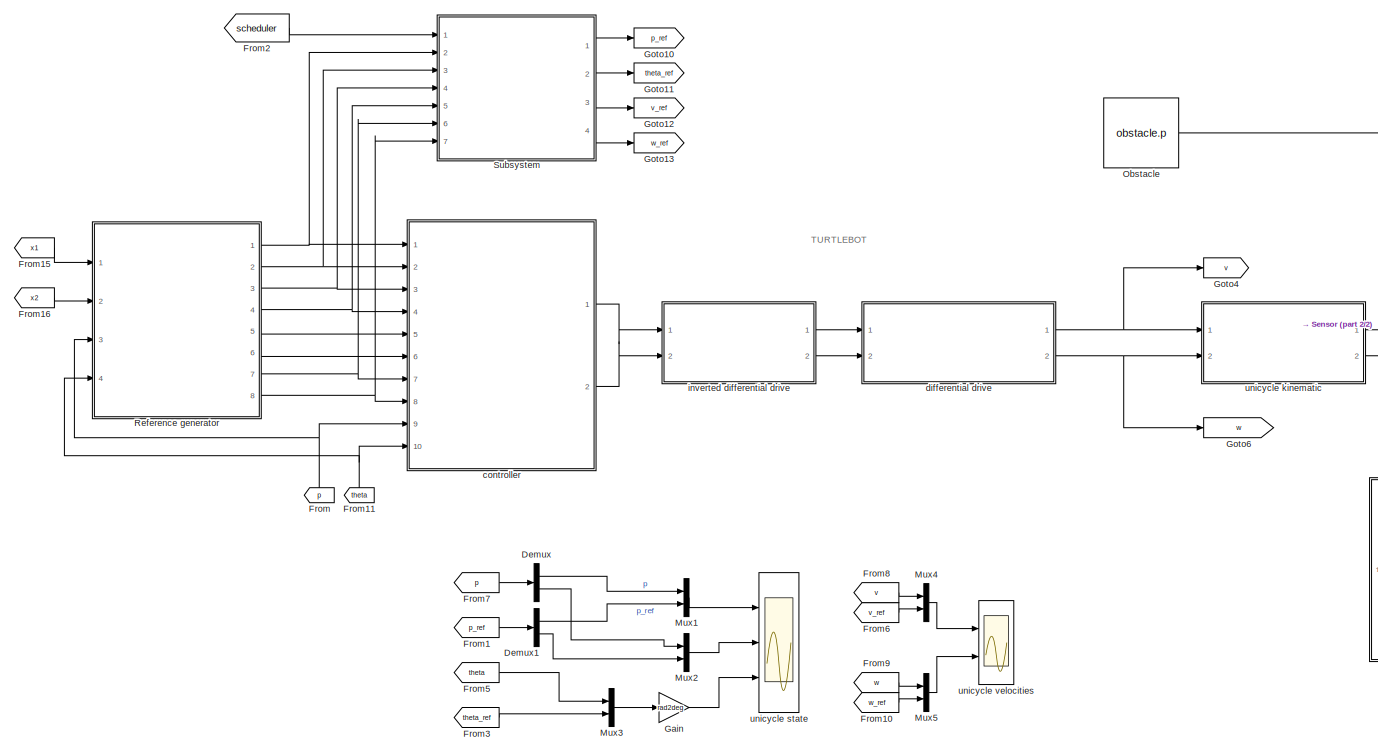
[diagram: root canvas - part 1/2, most of the canvas]
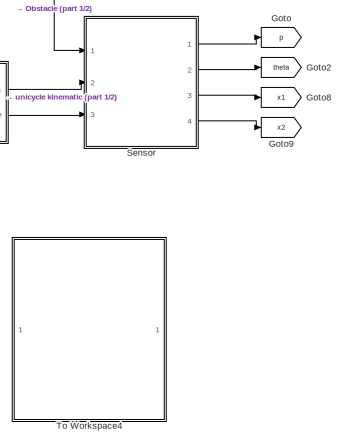
[diagram: root canvas - part 2/2, middle right region]
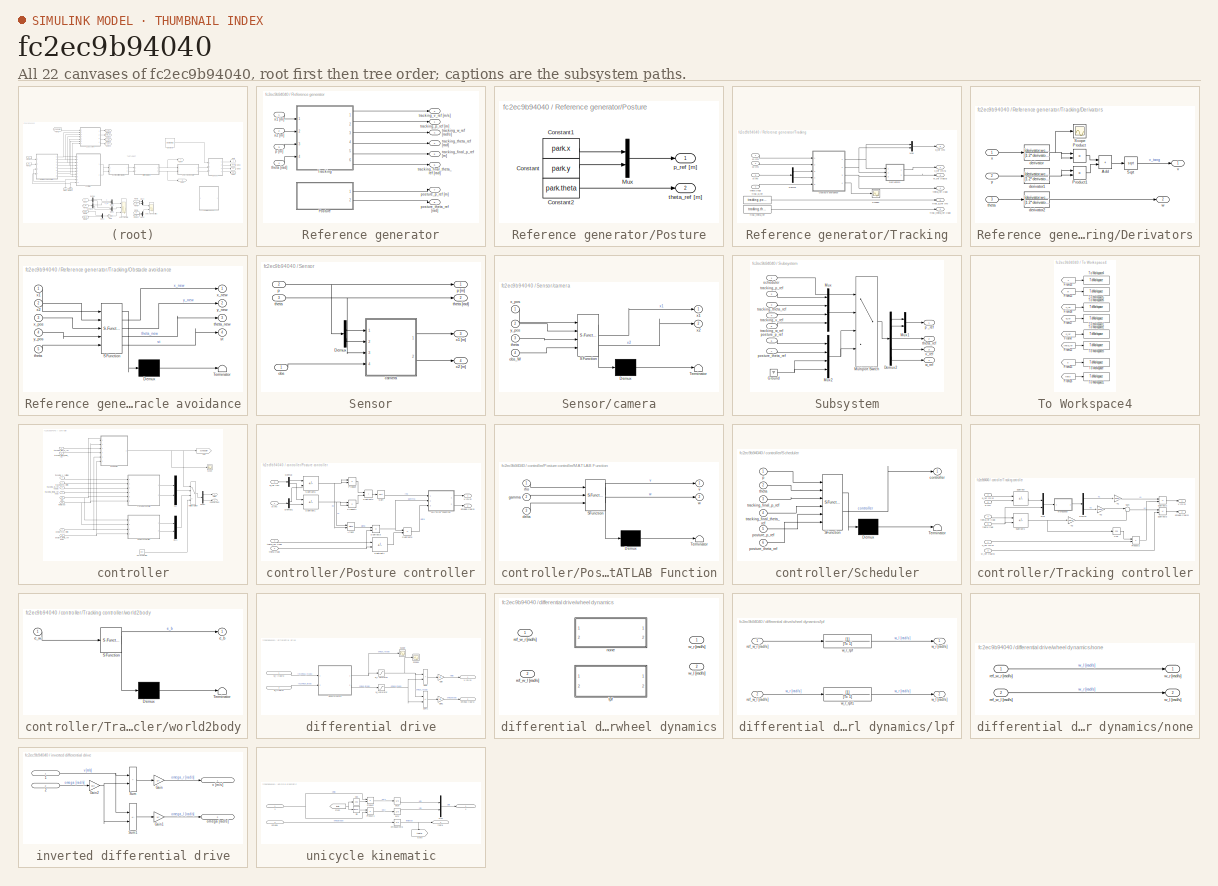
[diagram: thumbnail index - all 22 canvases of the model, root first then tree order]
MODEL slx_fc2ec9b94040
KIND model
CONFIG AbsTol = auto
CONFIG EnableMultiTasking = off
CONFIG FixedStep = simulation.step_size
CONFIG MaxStep = auto
CONFIG MinStep = auto
CONFIG PreLoadFcn = % initialize variables\ninitializeUnicycleModel;
CONFIG RelTol = 1e-5
CONFIG SampleTimeConstraint = Unconstrained
CONFIG SolverName = FixedStepAuto
CONFIG StartTime = 0.0
CONFIG StopTime = simulation.stop_time
BLOCK [Demux] Demux
  Outputs = 2
  Ports = [1, 2]
BLOCK [Demux] Demux1
  Outputs = 2
  Ports = [1, 2]
BLOCK [From] From
  GotoTag = p
  NameLocation = right
  TagVisibility = global
BLOCK [From] From1
  GotoTag = p_ref
  TagVisibility = global
BLOCK [From] From10
  GotoTag = w_ref
  TagVisibility = global
BLOCK [From] From11
  GotoTag = theta
  NameLocation = right
  TagVisibility = global
BLOCK [From] From15
  GotoTag = x1
BLOCK [From] From16
  GotoTag = x2
BLOCK [From] From2
  GotoTag = scheduler
  TagVisibility = global
BLOCK [From] From3
  GotoTag = theta_ref
  TagVisibility = global
BLOCK [From] From5
  GotoTag = theta
  TagVisibility = global
BLOCK [From] From6
  GotoTag = v_ref
  TagVisibility = global
BLOCK [From] From7
  GotoTag = p
  TagVisibility = global
BLOCK [From] From8
  GotoTag = v
  TagVisibility = global
BLOCK [From] From9
  GotoTag = w
  TagVisibility = global
BLOCK [Gain] Gain
  Gain = rad2deg
BLOCK [Goto] Goto
  GotoTag = p
  TagVisibility = global
BLOCK [Goto] Goto10
  GotoTag = p_ref
  TagVisibility = global
BLOCK [Goto] Goto11
  GotoTag = theta_ref
  TagVisibility = global
BLOCK [Goto] Goto12
  GotoTag = v_ref
  TagVisibility = global
BLOCK [Goto] Goto13
  GotoTag = w_ref
  TagVisibility = global
BLOCK [Goto] Goto2
  GotoTag = theta
  TagVisibility = global
BLOCK [Goto] Goto4
  GotoTag = v
  TagVisibility = global
BLOCK [Goto] Goto6
  GotoTag = w
  TagVisibility = global
BLOCK [Goto] Goto8
  GotoTag = x1
BLOCK [Goto] Goto9
  GotoTag = x2
BLOCK [Mux] Mux1
  DisplayOption = bar
  Inputs = 2
  Ports = [2, 1]
BLOCK [Mux] Mux2
  DisplayOption = bar
  Inputs = 2
  Ports = [2, 1]
BLOCK [Mux] Mux3
  DisplayOption = bar
  Inputs = 2
  Ports = [2, 1]
BLOCK [Mux] Mux4
  DisplayOption = bar
  Inputs = 2
  Ports = [2, 1]
BLOCK [Mux] Mux5
  DisplayOption = bar
  Inputs = 2
  Ports = [2, 1]
BLOCK [Constant] Obstacle
  Value = obstacle.p
BLOCK [SubSystem] Reference generator
  Ports = [4, 8]
  RequestExecContextInheritance = off
BLOCK [SubSystem] Reference generator/Posture
  Ports = [0, 2]
  RequestExecContextInheritance = off
BLOCK [Constant] Reference generator/Posture/Constant
  SampleTime = unicycle.diffDrive.Td
  Value = park.y
BLOCK [Constant] Reference generator/Posture/Constant1
  SampleTime = unicycle.diffDrive.Td
  Value = park.x
BLOCK [Constant] Reference generator/Posture/Constant2
  SampleTime = unicycle.diffDrive.Td
  Value = park.theta
BLOCK [Mux] Reference generator/Posture/Mux
  DisplayOption = bar
  Inputs = 2
  Ports = [2, 1]
BLOCK [Outport] Reference generator/Posture/p_ref [m]
BLOCK [Outport] Reference generator/Posture/theta_ref [m]
  Port = 2
BLOCK [SubSystem] Reference generator/Tracking
  Ports = [4, 6]
  RequestExecContextInheritance = off
BLOCK [Demux] Reference generator/Tracking/Demux
  Outputs = 2
  Ports = [1, 2]
BLOCK [SubSystem] Reference generator/Tracking/Derivators
  Ports = [3, 2]
  RequestExecContextInheritance = off
BLOCK [Sum] Reference generator/Tracking/Derivators/Add
  IconShape = rectangular
  Ports = [2, 1]
BLOCK [Product] Reference generator/Tracking/Derivators/Product
  Ports = [2, 1]
BLOCK [Product] Reference generator/Tracking/Derivators/Product1
  Ports = [2, 1]
BLOCK [Scope] Reference generator/Tracking/Derivators/Scope
  Floating = off
  NumInputPorts = 1
  Ports = [1]
  ScopeSpecificationString = Simulink.scopes.TimeScopeBlockCfg('CurrentConfiguration', extmgr.ConfigurationSet(extmgr.Configuration('Core','General UI',true),extmgr.Configuration('Core','Source UI',true),extmgr.Configuration('Sources','WiredSimulink',true,'DataLoggingVariableName','ScopeData1'),extmgr.Configuration('Visuals','Time Domain',true,'SerializedDisplays',{struct('MinYLimReal','-1.59157','MaxYLimReal','10.3626','YLab...<+1368ch>
BLOCK [Sqrt] Reference generator/Tracking/Derivators/Sqrt
BLOCK [TransferFcn] Reference generator/Tracking/Derivators/derivator
  Denominator = [1 2*derivator.delta*derivator.wc derivator.wc^2]
  Numerator = [derivator.wc^2 0]
BLOCK [TransferFcn] Reference generator/Tracking/Derivators/derivator1
  Denominator = [1 2*derivator.delta*derivator.wc derivator.wc^2]
  Numerator = [derivator.wc^2 0]
BLOCK [TransferFcn] Reference generator/Tracking/Derivators/derivator2
  Denominator = [1 2*derivator.delta*derivator.wc derivator.wc^2]
  Numerator = [derivator.wc^2 0]
BLOCK [Inport] Reference generator/Tracking/Derivators/theta
  Port = 3
BLOCK [Outport] Reference generator/Tracking/Derivators/v
BLOCK [Outport] Reference generator/Tracking/Derivators/w
  Port = 2
BLOCK [Inport] Reference generator/Tracking/Derivators/x
BLOCK [Inport] Reference generator/Tracking/Derivators/y
  Port = 2
BLOCK [Mux] Reference generator/Tracking/Mux
  DisplayOption = bar
  Inputs = 2
  Ports = [2, 1]
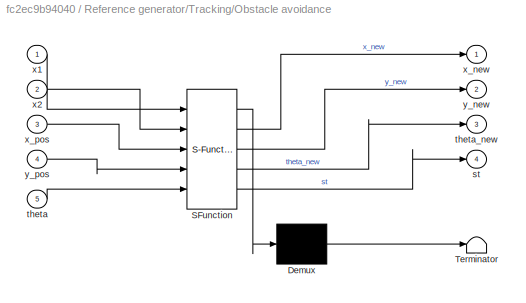
BLOCK [SubSystem] Reference generator/Tracking/Obstacle avoidance
  ErrorFcn = Stateflow.Translate.translate
  PermitHierarchicalResolution = ExplicitOnly
  Ports = [5, 4]
  RequestExecContextInheritance = off
  SFBlockType = MATLAB Function
  TreatAsAtomicUnit = on
BLOCK [Demux] Reference generator/Tracking/Obstacle avoidance/ Demux 
  Outputs = 1
  Ports = [1, 1]
BLOCK [S-Function] Reference generator/Tracking/Obstacle avoidance/ SFunction 
  EnableBusSupport = on
  FunctionName = sf_sfun
  Parameters = camera,tracking,unicycle
  PortCounts = [5 5]
  Ports = [5, 5]
  SFcnIsStateOwnerBlock = off
  SFunctionDeploymentMode = off
  Tag = Stateflow S-Function 9
BLOCK [Terminator] Reference generator/Tracking/Obstacle avoidance/ Terminator 
BLOCK [Outport] Reference generator/Tracking/Obstacle avoidance/st
  Port = 4
BLOCK [Inport] Reference generator/Tracking/Obstacle avoidance/theta
  Port = 5
BLOCK [Outport] Reference generator/Tracking/Obstacle avoidance/theta_new
  Port = 3
BLOCK [Inport] Reference generator/Tracking/Obstacle avoidance/x1
BLOCK [Inport] Reference generator/Tracking/Obstacle avoidance/x2
  Port = 2
BLOCK [Outport] Reference generator/Tracking/Obstacle avoidance/x_new
BLOCK [Inport] Reference generator/Tracking/Obstacle avoidance/x_pos
  Port = 3
BLOCK [Outport] Reference generator/Tracking/Obstacle avoidance/y_new
  Port = 2
BLOCK [Inport] Reference generator/Tracking/Obstacle avoidance/y_pos
  Port = 4
BLOCK [Scope] Reference generator/Tracking/Scope1
  Floating = off
  NumInputPorts = 1
  Ports = [1]
  ScopeSpecificationString = Simulink.scopes.TimeScopeBlockCfg('CurrentConfiguration', extmgr.ConfigurationSet(extmgr.Configuration('Core','General UI',true),extmgr.Configuration('Core','Source UI',true),extmgr.Configuration('Sources','WiredSimulink',true,'DataLoggingVariableName','ScopeData2'),extmgr.Configuration('Visuals','Time Domain',true,'SerializedDisplays',{struct('MinYLimReal','-1.25','MaxYLimReal','1.25','YLabelReal...<+1393ch>
BLOCK [Constant] Reference generator/Tracking/final_p_ref
  Value = tracking.points(end,:)
BLOCK [Outport] Reference generator/Tracking/final_p_ref [m]
  Port = 5
BLOCK [Constant] Reference generator/Tracking/final_theta_ref
  Value = tracking.theta(end)
BLOCK [Outport] Reference generator/Tracking/final_theta_ref [rad]
  Port = 6
BLOCK [Inport] Reference generator/Tracking/p [m]
  Port = 3
BLOCK [Outport] Reference generator/Tracking/p_ref [m]
  Port = 2
BLOCK [Inport] Reference generator/Tracking/theta [rad]
  Port = 4
BLOCK [Outport] Reference generator/Tracking/theta_ref [rad]
  Port = 4
BLOCK [Outport] Reference generator/Tracking/v_ref [m//s]
BLOCK [Outport] Reference generator/Tracking/w_ref [rad//s]
  Port = 3
BLOCK [Inport] Reference generator/Tracking/x1 [m]
BLOCK [Inport] Reference generator/Tracking/x2 [m]
  Port = 2
BLOCK [Inport] Reference generator/p [m]
  Port = 3
BLOCK [Outport] Reference generator/posture_p_ref [m]
  Port = 7
BLOCK [Outport] Reference generator/posture_theta_ref [rad]
  Port = 8
BLOCK [Inport] Reference generator/theta [rad]
  Port = 4
BLOCK [Outport] Reference generator/tracking_final_p_ref [m]
  Port = 5
BLOCK [Outport] Reference generator/tracking_final_theta_ref [rad]
  Port = 6
BLOCK [Outport] Reference generator/tracking_p_ref [m]
BLOCK [Outport] Reference generator/tracking_theta_ref [rad]
  Port = 2
BLOCK [Outport] Reference generator/tracking_v_ref [m//s]
  Port = 3
BLOCK [Outport] Reference generator/tracking_w_ref [rad//s]
  Port = 4
BLOCK [Inport] Reference generator/x1 [m]
BLOCK [Inport] Reference generator/x2 [m]
  Port = 2
BLOCK [SubSystem] Sensor
  Ports = [3, 4]
  RequestExecContextInheritance = off
BLOCK [Demux] Sensor/Demux
  Outputs = 2
  Ports = [1, 2]
BLOCK [SubSystem] Sensor/camera
  ErrorFcn = Stateflow.Translate.translate
  PermitHierarchicalResolution = ExplicitOnly
  Ports = [4, 2]
  RequestExecContextInheritance = off
  SFBlockType = MATLAB Function
  TreatAsAtomicUnit = on
BLOCK [Demux] Sensor/camera/ Demux 
  Outputs = 1
  Ports = [1, 1]
BLOCK [S-Function] Sensor/camera/ SFunction 
  EnableBusSupport = on
  FunctionName = sf_sfun
  Parameters = camera,unicycle
  PortCounts = [4 3]
  Ports = [4, 3]
  SFcnIsStateOwnerBlock = off
  SFunctionDeploymentMode = off
  Tag = Stateflow S-Function 7
BLOCK [Terminator] Sensor/camera/ Terminator 
BLOCK [Inport] Sensor/camera/obs_W
  Port = 4
BLOCK [Inport] Sensor/camera/theta
  Port = 3
BLOCK [Outport] Sensor/camera/x1
BLOCK [Outport] Sensor/camera/x2
  Port = 2
BLOCK [Inport] Sensor/camera/x_pos
BLOCK [Inport] Sensor/camera/y_pos
  Port = 2
BLOCK [Inport] Sensor/obs
BLOCK [Inport] Sensor/p
  Port = 2
BLOCK [Outport] Sensor/p [m]
BLOCK [Inport] Sensor/theta
  Port = 3
BLOCK [Outport] Sensor/theta [rad]
  Port = 2
BLOCK [Outport] Sensor/x1 [m]
  Port = 3
BLOCK [Outport] Sensor/x2 [m]
  Port = 4
BLOCK [SubSystem] Subsystem
  Ports = [7, 4]
  RequestExecContextInheritance = off
BLOCK [Demux] Subsystem/Demux2
  Outputs = 5
  Ports = [1, 5]
BLOCK [Ground] Subsystem/Ground
BLOCK [MultiPortSwitch] Subsystem/Multiport Switch
  InputSameDT = off
  Ports = [4, 1]
  SaturateOnIntegerOverflow = off
BLOCK [Mux] Subsystem/Mux
  DisplayOption = bar
  Ports = [4, 1]
BLOCK [Mux] Subsystem/Mux1
  DisplayOption = bar
  Inputs = 2
  Ports = [2, 1]
BLOCK [Mux] Subsystem/Mux2
  DisplayOption = bar
  Ports = [4, 1]
BLOCK [Outport] Subsystem/p _ref
BLOCK [Inport] Subsystem/posture_p_ref
  Port = 6
BLOCK [Inport] Subsystem/posture_theta_ref
  Port = 7
BLOCK [Inport] Subsystem/scheduler
BLOCK [Outport] Subsystem/theta_ref
  Port = 2
BLOCK [Inport] Subsystem/tracking_p_ref
  Port = 2
BLOCK [Inport] Subsystem/tracking_theta_ref
  Port = 3
BLOCK [Inport] Subsystem/tracking_v_ref
  Port = 4
BLOCK [Inport] Subsystem/tracking_w_ref
  Port = 5
BLOCK [Outport] Subsystem/v_ref
  Port = 3
BLOCK [Outport] Subsystem/w_ref
  Port = 4
BLOCK [SubSystem] To Workspace4
  Ports = []
  RequestExecContextInheritance = off
BLOCK [From] To Workspace4/From12
  GotoTag = theta_ref
  TagVisibility = global
BLOCK [From] To Workspace4/From13
  GotoTag = w
  TagVisibility = global
BLOCK [From] To Workspace4/From14
  GotoTag = v
  TagVisibility = global
BLOCK [From] To Workspace4/From17
  GotoTag = w_ref
  TagVisibility = global
BLOCK [From] To Workspace4/From18
  GotoTag = v_ref
  TagVisibility = global
BLOCK [From] To Workspace4/From25
  GotoTag = p
  TagVisibility = global
BLOCK [From] To Workspace4/From26
  GotoTag = theta
  TagVisibility = global
BLOCK [From] To Workspace4/From4
  GotoTag = p_ref
  TagVisibility = global
BLOCK [ToWorkspace] To Workspace4/To Workspace
  FixptAsFi = on
  MaxDataPoints = inf
  Ports = [1]
  SampleTime = -1
  SaveFormat = Timeseries
  VariableName = p
BLOCK [ToWorkspace] To Workspace4/To Workspace1
  FixptAsFi = on
  MaxDataPoints = inf
  Ports = [1]
  SampleTime = -1
  SaveFormat = Timeseries
  VariableName = theta
BLOCK [ToWorkspace] To Workspace4/To Workspace2
  FixptAsFi = on
  MaxDataPoints = inf
  Ports = [1]
  SampleTime = -1
  SaveFormat = Timeseries
  VariableName = p_ref
BLOCK [ToWorkspace] To Workspace4/To Workspace3
  FixptAsFi = on
  MaxDataPoints = inf
  Ports = [1]
  SampleTime = -1
  SaveFormat = Timeseries
  VariableName = theta_ref
BLOCK [ToWorkspace] To Workspace4/To Workspace4
  FixptAsFi = on
  MaxDataPoints = inf
  Ports = [1]
  SampleTime = -1
  SaveFormat = Timeseries
  VariableName = v
BLOCK [ToWorkspace] To Workspace4/To Workspace5
  FixptAsFi = on
  MaxDataPoints = inf
  Ports = [1]
  SampleTime = -1
  SaveFormat = Timeseries
  VariableName = w
BLOCK [ToWorkspace] To Workspace4/To Workspace6
  FixptAsFi = on
  MaxDataPoints = inf
  Ports = [1]
  SampleTime = -1
  SaveFormat = Timeseries
  VariableName = v_ref
BLOCK [ToWorkspace] To Workspace4/To Workspace7
  FixptAsFi = on
  MaxDataPoints = inf
  Ports = [1]
  SampleTime = -1
  SaveFormat = Timeseries
  VariableName = w_ref
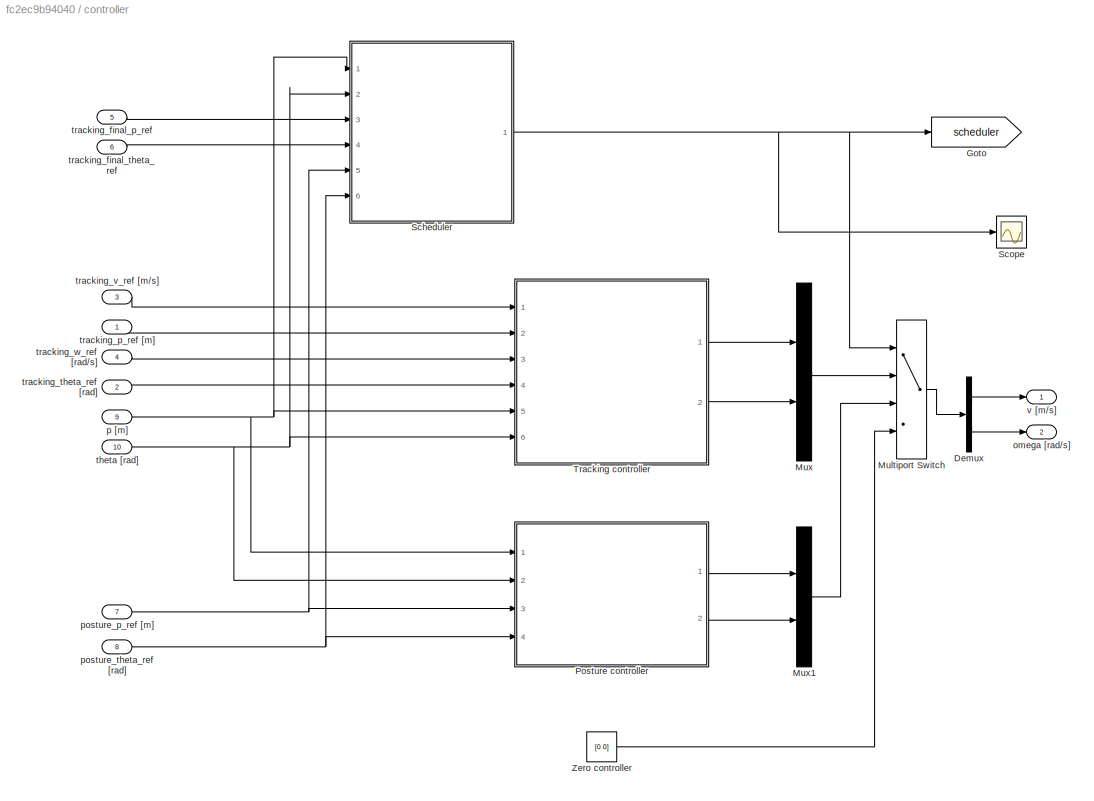
BLOCK [SubSystem] controller
  Ports = [10, 2]
  RequestExecContextInheritance = off
BLOCK [Demux] controller/Demux
  Outputs = 2
  Ports = [1, 2]
BLOCK [Goto] controller/Goto
  GotoTag = scheduler
  TagVisibility = global
BLOCK [MultiPortSwitch] controller/Multiport Switch
  InputSameDT = off
  Ports = [4, 1]
  SaturateOnIntegerOverflow = off
BLOCK [Mux] controller/Mux
  DisplayOption = bar
  Inputs = 2
  Ports = [2, 1]
BLOCK [Mux] controller/Mux1
  DisplayOption = bar
  Inputs = 2
  Ports = [2, 1]
BLOCK [SubSystem] controller/Posture controller
  Ports = [4, 2]
  RequestExecContextInheritance = off
BLOCK [Trigonometry] controller/Posture controller/Atan2
  Operator = atan2
  Ports = [2, 1]
BLOCK [Demux] controller/Posture controller/Demux
  Outputs = 2
  Ports = [1, 2]
BLOCK [Demux] controller/Posture controller/Demux1
  Outputs = 2
  Ports = [1, 2]
BLOCK [SubSystem] controller/Posture controller/MATLAB Function
  ErrorFcn = Stateflow.Translate.translate
  PermitHierarchicalResolution = ExplicitOnly
  Ports = [3, 2]
  RequestExecContextInheritance = off
  SFBlockType = MATLAB Function
  TreatAsAtomicUnit = on
BLOCK [Demux] controller/Posture controller/MATLAB Function/ Demux 
  Outputs = 1
  Ports = [1, 1]
BLOCK [S-Function] controller/Posture controller/MATLAB Function/ SFunction 
  EnableBusSupport = on
  FunctionName = sf_sfun
  Parameters = controller
  PortCounts = [3 3]
  Ports = [3, 3]
  SFcnIsStateOwnerBlock = off
  SFunctionDeploymentMode = off
  Tag = Stateflow S-Function 5
BLOCK [Terminator] controller/Posture controller/MATLAB Function/ Terminator 
BLOCK [Inport] controller/Posture controller/MATLAB Function/delta
  Port = 3
BLOCK [Inport] controller/Posture controller/MATLAB Function/gamma
  Port = 2
BLOCK [Inport] controller/Posture controller/MATLAB Function/rho
BLOCK [Outport] controller/Posture controller/MATLAB Function/v
BLOCK [Outport] controller/Posture controller/MATLAB Function/w
  Port = 2
BLOCK [Product] controller/Posture controller/Product
  Ports = [2, 1]
BLOCK [Product] controller/Posture controller/Product1
  Ports = [2, 1]
BLOCK [Sqrt] controller/Posture controller/Sqrt
BLOCK [Sum] controller/Posture controller/Subtract1
  IconShape = rectangular
  Inputs = +-
  Ports = [2, 1]
BLOCK [Sum] controller/Posture controller/Subtract2
  IconShape = rectangular
  Ports = [2, 1]
BLOCK [Sum] controller/Posture controller/Subtract3
  IconShape = rectangular
  Inputs = +-
  Ports = [2, 1]
BLOCK [Sum] controller/Posture controller/Subtract5
  IconShape = rectangular
  Inputs = +-
  Ports = [2, 1]
BLOCK [Sum] controller/Posture controller/Subtract6
  IconShape = rectangular
  Inputs = +-
  Ports = [2, 1]
BLOCK [Sum] controller/Posture controller/Subtract7
  IconShape = rectangular
  Inputs = +-
  Ports = [2, 1]
BLOCK [Outport] controller/Posture controller/omega [rad//s]
  Port = 2
BLOCK [Inport] controller/Posture controller/p [m]
BLOCK [Inport] controller/Posture controller/p_ref [m]
  Port = 3
BLOCK [Inport] controller/Posture controller/theta [rad]
  Port = 2
BLOCK [Inport] controller/Posture controller/theta_ref [rad]
  Port = 4
BLOCK [Outport] controller/Posture controller/v [m//s]
BLOCK [SubSystem] controller/Scheduler
  ErrorFcn = Stateflow.Translate.translate
  PermitHierarchicalResolution = ExplicitOnly
  Ports = [6, 1]
  RequestExecContextInheritance = off
  SFBlockType = MATLAB Function
  TreatAsAtomicUnit = on
BLOCK [Demux] controller/Scheduler/ Demux 
  Outputs = 1
  Ports = [1, 1]
BLOCK [S-Function] controller/Scheduler/ SFunction 
  EnableBusSupport = on
  FunctionName = sf_sfun
  Parameters = scheduler
  PortCounts = [6 2]
  Ports = [6, 2]
  SFcnIsStateOwnerBlock = off
  SFunctionDeploymentMode = off
  Tag = Stateflow S-Function 4
BLOCK [Terminator] controller/Scheduler/ Terminator 
BLOCK [Outport] controller/Scheduler/controller
BLOCK [Inport] controller/Scheduler/p
BLOCK [Inport] controller/Scheduler/posture_p_ref
  Port = 5
BLOCK [Inport] controller/Scheduler/posture_theta_ref
  Port = 6
BLOCK [Inport] controller/Scheduler/theta
  Port = 2
BLOCK [Inport] controller/Scheduler/tracking_final_p_ref
  Port = 3
BLOCK [Inport] controller/Scheduler/tracking_final_theta_ref
  Port = 4
BLOCK [Scope] controller/Scope
  Floating = off
  NumInputPorts = 1
  Ports = [1]
  ScopeSpecificationString = Simulink.scopes.TimeScopeBlockCfg('CurrentConfiguration', extmgr.ConfigurationSet(extmgr.Configuration('Core','General UI',true),extmgr.Configuration('Core','Source UI',true),extmgr.Configuration('Sources','WiredSimulink',true,'DataLoggingVariableName','ScopeData1'),extmgr.Configuration('Visuals','Time Domain',true,'SerializedDisplays',{struct('MinYLimReal','0.75','MaxYLimReal','3.25','YLabelReal'...<+1342ch>
BLOCK [SubSystem] controller/Tracking controller
  Ports = [6, 2]
  RequestExecContextInheritance = off
BLOCK [Gain] controller/Tracking controller/-K1
  Gain = -controller.tracking.K1
BLOCK [Gain] controller/Tracking controller/-K2
  Gain = -controller.tracking.K2
BLOCK [Gain] controller/Tracking controller/-K3
  Gain = -controller.tracking.K3
BLOCK [Trigonometry] controller/Tracking controller/Cos
  Operator = cos
  Ports = [1, 1]
BLOCK [Demux] controller/Tracking controller/Demux
  Outputs = 2
  Ports = [1, 2]
BLOCK [Mux] controller/Tracking controller/Mux
  DisplayOption = bar
  Inputs = 2
  Ports = [2, 1]
BLOCK [Product] controller/Tracking controller/Product2
  Ports = [2, 1]
BLOCK [Sum] controller/Tracking controller/Subtract
  IconShape = rectangular
  Inputs = +-
  Ports = [2, 1]
BLOCK [Sum] controller/Tracking controller/Subtract1
  IconShape = rectangular
  Inputs = +-
  Ports = [2, 1]
BLOCK [Sum] controller/Tracking controller/Subtract2
  IconShape = rectangular
  Inputs = -+
  Ports = [2, 1]
BLOCK [Sum] controller/Tracking controller/Subtract3
  IconShape = rectangular
  Inputs = -+
  Ports = [2, 1]
BLOCK [Sum] controller/Tracking controller/Sum
  Inputs = |++
  Ports = [2, 1]
BLOCK [Outport] controller/Tracking controller/omega [rad//s]
  Port = 2
BLOCK [Inport] controller/Tracking controller/p [m]
  Port = 5
BLOCK [Inport] controller/Tracking controller/p_ref [m//s]
  Port = 2
BLOCK [Inport] controller/Tracking controller/theta [rad]
  Port = 6
BLOCK [Inport] controller/Tracking controller/theta_ref [rad]
  Port = 4
BLOCK [Outport] controller/Tracking controller/v [m//s]
BLOCK [Inport] controller/Tracking controller/v_ref [m//s]
BLOCK [Inport] controller/Tracking controller/w_ref [rad//s]
  Port = 3
BLOCK [SubSystem] controller/Tracking controller/world2body
  ErrorFcn = Stateflow.Translate.translate
  PermitHierarchicalResolution = ExplicitOnly
  Ports = [1, 1]
  RequestExecContextInheritance = off
  SFBlockType = MATLAB Function
  TreatAsAtomicUnit = on
BLOCK [Demux] controller/Tracking controller/world2body/ Demux 
  Outputs = 1
  Ports = [1, 1]
BLOCK [S-Function] controller/Tracking controller/world2body/ SFunction 
  EnableBusSupport = on
  FunctionName = sf_sfun
  PortCounts = [1 2]
  Ports = [1, 2]
  SFcnIsStateOwnerBlock = off
  SFunctionDeploymentMode = off
  Tag = Stateflow S-Function 3
BLOCK [Terminator] controller/Tracking controller/world2body/ Terminator 
BLOCK [Outport] controller/Tracking controller/world2body/e_b
BLOCK [Inport] controller/Tracking controller/world2body/e_w
BLOCK [Constant] controller/Zero controller
  Value = [0 0]
BLOCK [Outport] controller/omega [rad//s]
  Port = 2
BLOCK [Inport] controller/p [m]
  Port = 9
BLOCK [Inport] controller/posture_p_ref [m]
  Port = 7
BLOCK [Inport] controller/posture_theta_ref [rad]
  Port = 8
BLOCK [Inport] controller/theta [rad]
  Port = 10
BLOCK [Inport] controller/tracking_final_p_ref
  Port = 5
BLOCK [Inport] controller/tracking_final_theta_ref
  Port = 6
BLOCK [Inport] controller/tracking_p_ref [m]
BLOCK [Inport] controller/tracking_theta_ref [rad]
  Port = 2
BLOCK [Inport] controller/tracking_v_ref [m//s]
  Port = 3
BLOCK [Inport] controller/tracking_w_ref [rad//s]
  Port = 4
BLOCK [Outport] controller/v [m//s]
BLOCK [SubSystem] differential drive
  Ports = [2, 2]
  RequestExecContextInheritance = off
BLOCK [Gain] differential drive/Gain
  Gain = r/2
BLOCK [Gain] differential drive/Gain1
  Gain = r/d
BLOCK [Scope] differential drive/Scope
  Floating = off
  NumInputPorts = 1
  Ports = [1]
  ScopeSpecificationString = Simulink.scopes.TimeScopeBlockCfg('CurrentConfiguration', extmgr.ConfigurationSet(extmgr.Configuration('Core','General UI',true),extmgr.Configuration('Core','Source UI',true),extmgr.Configuration('Sources','WiredSimulink',true,'DataLoggingVariableName','ScopeData2'),extmgr.Configuration('Visuals','Time Domain',true,'SerializedDisplays',{struct('MinYLimReal','-86.69728','MaxYLimReal','574.83783','Y...<+1413ch>
BLOCK [Scope] differential drive/Scope1
  Floating = off
  NumInputPorts = 1
  Ports = [1]
  ScopeSpecificationString = Simulink.scopes.TimeScopeBlockCfg('CurrentConfiguration', extmgr.ConfigurationSet(extmgr.Configuration('Core','General UI',true),extmgr.Configuration('Core','Source UI',true),extmgr.Configuration('Sources','WiredSimulink',true,'DataLoggingVariableName','ScopeData3'),extmgr.Configuration('Visuals','Time Domain',true),extmgr.Configuration('Tools','Plot Navigation',true),extmgr.Configuration('Tools',...<+40ch>
BLOCK [Sum] differential drive/Sum
  IconShape = rectangular
  Ports = [2, 1]
BLOCK [Sum] differential drive/Sum1
  IconShape = rectangular
  Inputs = +-
  Ports = [2, 1]
BLOCK [Outport] differential drive/omega [rad//s]
  IconDisplay = Signal name
  Port = 2
  Unit = rad/s
BLOCK [Outport] differential drive/v [m//s]
  IconDisplay = Signal name
  Unit = m/s
BLOCK [Inport] differential drive/w_l [rad//s]
  IconDisplay = Signal name
  Port = 2
  Unit = rad/s
BLOCK [Saturate] differential drive/w_l saturator
  LowerLimit = wheelsSpeedLowerLimit
  UpperLimit = wheelsSpeedUpperLimit
BLOCK [Inport] differential drive/w_r [rad//s]
  IconDisplay = Signal name
  Unit = rad/s
BLOCK [Saturate] differential drive/w_r saturator
  LowerLimit = wheelsSpeedLowerLimit
  UpperLimit = wheelsSpeedUpperLimit
BLOCK [SubSystem] differential drive/wheel dynamics
  Ports = [2, 2]
  RequestExecContextInheritance = off
  Variant = on
BLOCK [SubSystem] differential drive/wheel dynamics/lpf
  Ports = [2, 2]
  RequestExecContextInheritance = off
  VariantControl = wheelDyEn==true
BLOCK [Inport] differential drive/wheel dynamics/lpf/ref_w_l [rad//s]
  Port = 2
BLOCK [Inport] differential drive/wheel dynamics/lpf/ref_w_r [rad//s]
BLOCK [Outport] differential drive/wheel dynamics/lpf/w_l [rad//s]
  Port = 2
BLOCK [Outport] differential drive/wheel dynamics/lpf/w_r [rad//s]
BLOCK [TransferFcn] differential drive/wheel dynamics/lpf/w_r_lpf
  ContinuousStateAttributes = 'w_r_lpf'
  Denominator = [Tc 1]
BLOCK [TransferFcn] differential drive/wheel dynamics/lpf/w_r_lpf1
  ContinuousStateAttributes = 'w_r_lpf'
  Denominator = [Tc 1]
BLOCK [SubSystem] differential drive/wheel dynamics/none
  Ports = [2, 2]
  RequestExecContextInheritance = off
  VariantControl = wheelDyEn==false
BLOCK [Inport] differential drive/wheel dynamics/none/ref_w_l [rad//s]
  Port = 2
BLOCK [Inport] differential drive/wheel dynamics/none/ref_w_r [rad//s]
BLOCK [Outport] differential drive/wheel dynamics/none/w_l [rad//s]
  Port = 2
BLOCK [Outport] differential drive/wheel dynamics/none/w_r [rad//s]
BLOCK [Inport] differential drive/wheel dynamics/ref_w_l [rad//s]
  Port = 2
BLOCK [Inport] differential drive/wheel dynamics/ref_w_r [rad//s]
BLOCK [Outport] differential drive/wheel dynamics/w_l [rad//s]
  Port = 2
BLOCK [Outport] differential drive/wheel dynamics/w_r [rad//s]
BLOCK [SubSystem] inverted differential drive
  Ports = [2, 2]
  RequestExecContextInheritance = off
BLOCK [Inport] inverted differential drive/1
  IconDisplay = Signal name
  Unit = m/s
BLOCK [Inport] inverted differential drive/2
  IconDisplay = Signal name
  Port = 2
  Unit = rad/s
BLOCK [Gain] inverted differential drive/Gain
  Gain = 1/r
BLOCK [Gain] inverted differential drive/Gain1
  Gain = 1/r
BLOCK [Gain] inverted differential drive/Gain2
  Gain = d/2
BLOCK [Sum] inverted differential drive/Sum
  IconShape = rectangular
  Ports = [2, 1]
BLOCK [Sum] inverted differential drive/Sum1
  IconShape = rectangular
  Inputs = +-
  Ports = [2, 1]
BLOCK [Outport] inverted differential drive/omega [rad//s]
  IconDisplay = Signal name
  Port = 2
  Unit = rad/s
BLOCK [Outport] inverted differential drive/v [m//s]
  IconDisplay = Signal name
  Unit = rad/s
BLOCK [SubSystem] unicycle kinematic
  Ports = [2, 2]
  RequestExecContextInheritance = off
BLOCK [Trigonometry] unicycle kinematic/Cos
  Operator = cos
  Ports = [1, 1]
BLOCK [From] unicycle kinematic/From
  GotoTag = theta
BLOCK [Goto] unicycle kinematic/Goto
  GotoTag = theta
  NameLocation = left
BLOCK [Mux] unicycle kinematic/Mux
  DisplayOption = bar
  Inputs = 2
  Ports = [2, 1]
BLOCK [Product] unicycle kinematic/Product
  Ports = [2, 1]
BLOCK [Product] unicycle kinematic/Product1
  Ports = [2, 1]
BLOCK [Trigonometry] unicycle kinematic/Sin
  Ports = [1, 1]
BLOCK [Integrator] unicycle kinematic/dx2x
  ContinuousStateAttributes = 'pos_x'
  InitialCondition = x0
  Ports = [1, 1]
BLOCK [Integrator] unicycle kinematic/dy2y
  ContinuousStateAttributes = 'pos_y'
  InitialCondition = y0
  Ports = [1, 1]
BLOCK [Inport] unicycle kinematic/omega
  IconDisplay = Signal name
  Port = 2
  PortDimensions = 1
BLOCK [Integrator] unicycle kinematic/omega2theta
  ContinuousStateAttributes = 'theta'
  InitialCondition = theta0
  Ports = [1, 1]
BLOCK [Outport] unicycle kinematic/theta
  IconDisplay = Signal name
  Port = 2
  PortDimensions = 1
BLOCK [Inport] unicycle kinematic/v
  IconDisplay = Signal name
  PortDimensions = 1
BLOCK [Outport] unicycle kinematic/x
  IconDisplay = Signal name
  PortDimensions = 2
BLOCK [Scope] unicycle state
  Floating = off
  NumInputPorts = 3
  Ports = [3]
  ScopeSpecificationString = Simulink.scopes.TimeScopeBlockCfg('CurrentConfiguration', extmgr.ConfigurationSet(extmgr.Configuration('Core','General UI',true),extmgr.Configuration('Core','Source UI',true),extmgr.Configuration('Sources','WiredSimulink',true,'DataLoggingVariableName','data','DataLoggingSaveFormat','StructureWithTime'),extmgr.Configuration('Visuals','Time Domain',true,'SerializedDisplays',{struct('MinYLimReal','2...<+2781ch>
BLOCK [Scope] unicycle velocities
  Floating = off
  NumInputPorts = 2
  Ports = [2]
  ScopeSpecificationString = Simulink.scopes.TimeScopeBlockCfg('CurrentConfiguration', extmgr.ConfigurationSet(extmgr.Configuration('Core','General UI',true),extmgr.Configuration('Core','Source UI',true),extmgr.Configuration('Sources','WiredSimulink',true),extmgr.Configuration('Visuals','Time Domain',true,'SerializedDisplays',{struct('MinYLimReal','-1.79868','MaxYLimReal','12.11276','YLabelReal','','MinYLimMag','0.00000','Max...<+2055ch>
ANNOTATION (root): TURTLEBOT
LINE Demux1:1 -> Mux1:2
LINE Demux1:2 -> Mux2:2
LINE Demux:1 -> Mux1:1
LINE Demux:2 -> Mux2:1
LINE From10:1 -> Mux5:2
NET From11:1 -> Reference generator:4, controller:10
LINE From15:1 -> Reference generator:1
LINE From16:1 -> Reference generator:2
LINE From1:1 -> Demux1:1
LINE From2:1 -> Subsystem:1
LINE From3:1 -> Mux3:2
LINE From5:1 -> Mux3:1
LINE From6:1 -> Mux4:2
LINE From7:1 -> Demux:1
LINE From8:1 -> Mux4:1
LINE From9:1 -> Mux5:1
NET From:1 -> Reference generator:3, controller:9
LINE Gain:1 -> unicycle state:3
LINE Mux1:1 -> unicycle state:1
LINE Mux2:1 -> unicycle state:2
LINE Mux3:1 -> Gain:1
LINE Mux4:1 -> unicycle velocities:1
LINE Mux5:1 -> unicycle velocities:2
LINE Obstacle:1 -> Sensor:1
LINE Reference generator/Posture/Constant1:1 -> Reference generator/Posture/Mux:1
LINE Reference generator/Posture/Constant2:1 -> Reference generator/Posture/theta_ref [m]:1
LINE Reference generator/Posture/Constant:1 -> Reference generator/Posture/Mux:2
LINE Reference generator/Posture/Mux:1 -> Reference generator/Posture/p_ref [m]:1
LINE Reference generator/Posture:1 -> Reference generator/posture_p_ref [m]:1
LINE Reference generator/Posture:2 -> Reference generator/posture_theta_ref [rad]:1
LINE Reference generator/Tracking/Demux:1 -> Reference generator/Tracking/Obstacle avoidance:3
LINE Reference generator/Tracking/Demux:2 -> Reference generator/Tracking/Obstacle avoidance:4
LINE Reference generator/Tracking/Derivators/Add:1 -> Reference generator/Tracking/Derivators/Sqrt:1
LINE Reference generator/Tracking/Derivators/Product1:1 -> Reference generator/Tracking/Derivators/Add:2
LINE Reference generator/Tracking/Derivators/Product:1 -> Reference generator/Tracking/Derivators/Add:1
LINE Reference generator/Tracking/Derivators/Sqrt:1 -> Reference generator/Tracking/Derivators/v:1
NET Reference generator/Tracking/Derivators/derivator1:1 -> Reference generator/Tracking/Derivators/Product1:1, Reference generator/Tracking/Derivators/Product1:2
LINE Reference generator/Tracking/Derivators/derivator2:1 -> Reference generator/Tracking/Derivators/w:1
NET Reference generator/Tracking/Derivators/derivator:1 -> Reference generator/Tracking/Derivators/Product:1, Reference generator/Tracking/Derivators/Product:2, Reference generator/Tracking/Derivators/Scope:1
LINE Reference generator/Tracking/Derivators/theta:1 -> Reference generator/Tracking/Derivators/derivator2:1
LINE Reference generator/Tracking/Derivators/x:1 -> Reference generator/Tracking/Derivators/derivator:1
LINE Reference generator/Tracking/Derivators/y:1 -> Reference generator/Tracking/Derivators/derivator1:1
LINE Reference generator/Tracking/Derivators:1 -> Reference generator/Tracking/v_ref [m//s]:1
LINE Reference generator/Tracking/Derivators:2 -> Reference generator/Tracking/w_ref [rad//s]:1
LINE Reference generator/Tracking/Mux:1 -> Reference generator/Tracking/p_ref [m]:1
NET Reference generator/Tracking/Obstacle avoidance:1 -> Reference generator/Tracking/Derivators:1, Reference generator/Tracking/Mux:1
NET Reference generator/Tracking/Obstacle avoidance:2 -> Reference generator/Tracking/Derivators:2, Reference generator/Tracking/Mux:2
NET Reference generator/Tracking/Obstacle avoidance:3 -> Reference generator/Tracking/Derivators:3, Reference generator/Tracking/theta_ref [rad]:1
LINE Reference generator/Tracking/Obstacle avoidance:4 -> Reference generator/Tracking/Scope1:1
LINE Reference generator/Tracking/final_p_ref:1 -> Reference generator/Tracking/final_p_ref [m]:1
LINE Reference generator/Tracking/final_theta_ref:1 -> Reference generator/Tracking/final_theta_ref [rad]:1
LINE Reference generator/Tracking/p [m]:1 -> Reference generator/Tracking/Demux:1
LINE Reference generator/Tracking/theta [rad]:1 -> Reference generator/Tracking/Obstacle avoidance:5
LINE Reference generator/Tracking/x1 [m]:1 -> Reference generator/Tracking/Obstacle avoidance:1
LINE Reference generator/Tracking/x2 [m]:1 -> Reference generator/Tracking/Obstacle avoidance:2
LINE Reference generator/Tracking:1 -> Reference generator/tracking_v_ref [m//s]:1
LINE Reference generator/Tracking:2 -> Reference generator/tracking_p_ref [m]:1
LINE Reference generator/Tracking:3 -> Reference generator/tracking_w_ref [rad//s]:1
LINE Reference generator/Tracking:4 -> Reference generator/tracking_theta_ref [rad]:1
LINE Reference generator/Tracking:5 -> Reference generator/tracking_final_p_ref [m]:1
LINE Reference generator/Tracking:6 -> Reference generator/tracking_final_theta_ref [rad]:1
LINE Reference generator/p [m]:1 -> Reference generator/Tracking:3
LINE Reference generator/theta [rad]:1 -> Reference generator/Tracking:4
LINE Reference generator/x1 [m]:1 -> Reference generator/Tracking:1
LINE Reference generator/x2 [m]:1 -> Reference generator/Tracking:2
NET Reference generator:1 -> Subsystem:2, controller:1
NET Reference generator:2 -> Subsystem:3, controller:2
NET Reference generator:3 -> Subsystem:4, controller:3
NET Reference generator:4 -> Subsystem:5, controller:4
LINE Reference generator:5 -> controller:5
LINE Reference generator:6 -> controller:6
NET Reference generator:7 -> Subsystem:6, controller:7
NET Reference generator:8 -> Subsystem:7, controller:8
LINE Sensor/Demux:1 -> Sensor/camera:1
LINE Sensor/Demux:2 -> Sensor/camera:2
LINE Sensor/camera:1 -> Sensor/x1 [m]:1
LINE Sensor/camera:2 -> Sensor/x2 [m]:1
LINE Sensor/obs:1 -> Sensor/camera:4
NET Sensor/p:1 -> Sensor/Demux:1, Sensor/p [m]:1
NET Sensor/theta:1 -> Sensor/camera:3, Sensor/theta [rad]:1
LINE Sensor:1 -> Goto:1
LINE Sensor:2 -> Goto2:1
LINE Sensor:3 -> Goto8:1
LINE Sensor:4 -> Goto9:1
LINE Subsystem/Demux2:1 -> Subsystem/Mux1:1
LINE Subsystem/Demux2:2 -> Subsystem/Mux1:2
LINE Subsystem/Demux2:3 -> Subsystem/theta_ref:1
LINE Subsystem/Demux2:4 -> Subsystem/v_ref:1
LINE Subsystem/Demux2:5 -> Subsystem/w_ref:1
NET Subsystem/Ground:1 -> Subsystem/Mux2:3, Subsystem/Mux2:4
LINE Subsystem/Multiport Switch:1 -> Subsystem/Demux2:1
LINE Subsystem/Mux1:1 -> Subsystem/p _ref:1
NET Subsystem/Mux2:1 -> Subsystem/Multiport Switch:3, Subsystem/Multiport Switch:4
LINE Subsystem/Mux:1 -> Subsystem/Multiport Switch:2
LINE Subsystem/posture_p_ref:1 -> Subsystem/Mux2:1
LINE Subsystem/posture_theta_ref:1 -> Subsystem/Mux2:2
LINE Subsystem/scheduler:1 -> Subsystem/Multiport Switch:1
LINE Subsystem/tracking_p_ref:1 -> Subsystem/Mux:1
LINE Subsystem/tracking_theta_ref:1 -> Subsystem/Mux:2
LINE Subsystem/tracking_v_ref:1 -> Subsystem/Mux:3
LINE Subsystem/tracking_w_ref:1 -> Subsystem/Mux:4
LINE Subsystem:1 -> Goto10:1
LINE Subsystem:2 -> Goto11:1
LINE Subsystem:3 -> Goto12:1
LINE Subsystem:4 -> Goto13:1
LINE To Workspace4/From12:1 -> To Workspace4/To Workspace3:1
LINE To Workspace4/From13:1 -> To Workspace4/To Workspace5:1
LINE To Workspace4/From14:1 -> To Workspace4/To Workspace4:1
LINE To Workspace4/From17:1 -> To Workspace4/To Workspace7:1
LINE To Workspace4/From18:1 -> To Workspace4/To Workspace6:1
LINE To Workspace4/From25:1 -> To Workspace4/To Workspace:1
LINE To Workspace4/From26:1 -> To Workspace4/To Workspace1:1
LINE To Workspace4/From4:1 -> To Workspace4/To Workspace2:1
LINE controller/Demux:1 -> controller/v [m//s]:1
LINE controller/Demux:2 -> controller/omega [rad//s]:1
LINE controller/Multiport Switch:1 -> controller/Demux:1
LINE controller/Mux1:1 -> controller/Multiport Switch:3
LINE controller/Mux:1 -> controller/Multiport Switch:2
LINE controller/Posture controller/Atan2:1 -> controller/Posture controller/Subtract3:1
LINE controller/Posture controller/Demux1:1 -> controller/Posture controller/Subtract6:2
LINE controller/Posture controller/Demux1:2 -> controller/Posture controller/Subtract1:2
LINE controller/Posture controller/Demux:1 -> controller/Posture controller/Subtract6:1
LINE controller/Posture controller/Demux:2 -> controller/Posture controller/Subtract1:1
LINE controller/Posture controller/MATLAB Function:1 -> controller/Posture controller/v [m//s]:1
LINE controller/Posture controller/MATLAB Function:2 -> controller/Posture controller/omega [rad//s]:1
LINE controller/Posture controller/Product1:1 -> controller/Posture controller/Subtract2:2
LINE controller/Posture controller/Product:1 -> controller/Posture controller/Subtract2:1
LINE controller/Posture controller/Sqrt:1 -> controller/Posture controller/MATLAB Function:1
NET controller/Posture controller/Subtract1:1 -> controller/Posture controller/Atan2:1, controller/Posture controller/Product1:1, controller/Posture controller/Product1:2
LINE controller/Posture controller/Subtract2:1 -> controller/Posture controller/Sqrt:1
NET controller/Posture controller/Subtract3:1 -> controller/Posture controller/MATLAB Function:2, controller/Posture controller/Subtract5:1
LINE controller/Posture controller/Subtract5:1 -> controller/Posture controller/MATLAB Function:3
NET controller/Posture controller/Subtract6:1 -> controller/Posture controller/Atan2:2, controller/Posture controller/Product:1, controller/Posture controller/Product:2
LINE controller/Posture controller/Subtract7:1 -> controller/Posture controller/Subtract5:2
LINE controller/Posture controller/p [m]:1 -> controller/Posture controller/Demux1:1
LINE controller/Posture controller/p_ref [m]:1 -> controller/Posture controller/Demux:1
NET controller/Posture controller/theta [rad]:1 -> controller/Posture controller/Subtract3:2, controller/Posture controller/Subtract7:2
LINE controller/Posture controller/theta_ref [rad]:1 -> controller/Posture controller/Subtract7:1
LINE controller/Posture controller:1 -> controller/Mux1:1
LINE controller/Posture controller:2 -> controller/Mux1:2
NET controller/Scheduler:1 -> controller/Goto:1, controller/Multiport Switch:1, controller/Scope:1
LINE controller/Tracking controller/-K1:1 -> controller/Tracking controller/Subtract2:1
LINE controller/Tracking controller/-K2:1 -> controller/Tracking controller/Sum:1
LINE controller/Tracking controller/-K3:1 -> controller/Tracking controller/Sum:2
LINE controller/Tracking controller/Cos:1 -> controller/Tracking controller/Product2:1
LINE controller/Tracking controller/Demux:1 -> controller/Tracking controller/-K1:1
LINE controller/Tracking controller/Demux:2 -> controller/Tracking controller/-K2:1
LINE controller/Tracking controller/Mux:1 -> controller/Tracking controller/world2body:1
LINE controller/Tracking controller/Product2:1 -> controller/Tracking controller/Subtract2:2
NET controller/Tracking controller/Subtract1:1 -> controller/Tracking controller/-K3:1, controller/Tracking controller/Cos:1
LINE controller/Tracking controller/Subtract2:1 -> controller/Tracking controller/v [m//s]:1
LINE controller/Tracking controller/Subtract3:1 -> controller/Tracking controller/omega [rad//s]:1
LINE controller/Tracking controller/Subtract:1 -> controller/Tracking controller/Mux:1
LINE controller/Tracking controller/Sum:1 -> controller/Tracking controller/Subtract3:1
LINE controller/Tracking controller/p [m]:1 -> controller/Tracking controller/Subtract:2
LINE controller/Tracking controller/p_ref [m//s]:1 -> controller/Tracking controller/Subtract:1
NET controller/Tracking controller/theta [rad]:1 -> controller/Tracking controller/Mux:2, controller/Tracking controller/Subtract1:2
LINE controller/Tracking controller/theta_ref [rad]:1 -> controller/Tracking controller/Subtract1:1
LINE controller/Tracking controller/v_ref [m//s]:1 -> controller/Tracking controller/Product2:2
LINE controller/Tracking controller/w_ref [rad//s]:1 -> controller/Tracking controller/Subtract3:2
LINE controller/Tracking controller/world2body:1 -> controller/Tracking controller/Demux:1
LINE controller/Tracking controller:1 -> controller/Mux:1
LINE controller/Tracking controller:2 -> controller/Mux:2
LINE controller/Zero controller:1 -> controller/Multiport Switch:4
NET controller/p [m]:1 -> controller/Posture controller:1, controller/Scheduler:1, controller/Tracking controller:5
NET controller/posture_p_ref [m]:1 -> controller/Posture controller:3, controller/Scheduler:5
NET controller/posture_theta_ref [rad]:1 -> controller/Posture controller:4, controller/Scheduler:6
NET controller/theta [rad]:1 -> controller/Posture controller:2, controller/Scheduler:2, controller/Tracking controller:6
LINE controller/tracking_final_p_ref:1 -> controller/Scheduler:3
LINE controller/tracking_final_theta_ref:1 -> controller/Scheduler:4
LINE controller/tracking_p_ref [m]:1 -> controller/Tracking controller:2
LINE controller/tracking_theta_ref [rad]:1 -> controller/Tracking controller:4
LINE controller/tracking_v_ref [m//s]:1 -> controller/Tracking controller:1
LINE controller/tracking_w_ref [rad//s]:1 -> controller/Tracking controller:3
LINE controller:1 -> inverted differential drive:1
LINE controller:2 -> inverted differential drive:2
LINE differential drive/Gain1:1 -> differential drive/omega [rad//s]:1
LINE differential drive/Gain:1 -> differential drive/v [m//s]:1
LINE differential drive/Sum1:1 -> differential drive/Gain1:1
LINE differential drive/Sum:1 -> differential drive/Gain:1
LINE differential drive/w_l [rad//s]:1 -> differential drive/wheel dynamics:2
NET differential drive/w_l saturator:1 -> differential drive/Sum1:2, differential drive/Sum:2
LINE differential drive/w_r [rad//s]:1 -> differential drive/wheel dynamics:1
NET differential drive/w_r saturator:1 -> differential drive/Scope1:1, differential drive/Sum1:1, differential drive/Sum:1
LINE differential drive/wheel dynamics/lpf/ref_w_l [rad//s]:1 -> differential drive/wheel dynamics/lpf/w_r_lpf1:1
LINE differential drive/wheel dynamics/lpf/ref_w_r [rad//s]:1 -> differential drive/wheel dynamics/lpf/w_r_lpf:1
LINE differential drive/wheel dynamics/lpf/w_r_lpf1:1 -> differential drive/wheel dynamics/lpf/w_l [rad//s]:1
LINE differential drive/wheel dynamics/lpf/w_r_lpf:1 -> differential drive/wheel dynamics/lpf/w_r [rad//s]:1
LINE differential drive/wheel dynamics/none/ref_w_l [rad//s]:1 -> differential drive/wheel dynamics/none/w_l [rad//s]:1
LINE differential drive/wheel dynamics/none/ref_w_r [rad//s]:1 -> differential drive/wheel dynamics/none/w_r [rad//s]:1
NET differential drive/wheel dynamics:1 -> differential drive/Scope:1, differential drive/w_r saturator:1
LINE differential drive/wheel dynamics:2 -> differential drive/w_l saturator:1
NET differential drive:1 -> Goto4:1, unicycle kinematic:1
NET differential drive:2 -> Goto6:1, unicycle kinematic:2
NET inverted differential drive/1:1 -> inverted differential drive/Sum1:1, inverted differential drive/Sum:1
LINE inverted differential drive/2:1 -> inverted differential drive/Gain2:1
LINE inverted differential drive/Gain1:1 -> inverted differential drive/omega [rad//s]:1
NET inverted differential drive/Gain2:1 -> inverted differential drive/Sum1:2, inverted differential drive/Sum:2
LINE inverted differential drive/Gain:1 -> inverted differential drive/v [m//s]:1
LINE inverted differential drive/Sum1:1 -> inverted differential drive/Gain1:1
LINE inverted differential drive/Sum:1 -> inverted differential drive/Gain:1
LINE inverted differential drive:1 -> differential drive:1
LINE inverted differential drive:2 -> differential drive:2
LINE unicycle kinematic/Cos:1 -> unicycle kinematic/Product:2
NET unicycle kinematic/From:1 -> unicycle kinematic/Cos:1, unicycle kinematic/Sin:1
LINE unicycle kinematic/Mux:1 -> unicycle kinematic/x:1
LINE unicycle kinematic/Product1:1 -> unicycle kinematic/dy2y:1
LINE unicycle kinematic/Product:1 -> unicycle kinematic/dx2x:1
LINE unicycle kinematic/Sin:1 -> unicycle kinematic/Product1:1
LINE unicycle kinematic/dx2x:1 -> unicycle kinematic/Mux:1
LINE unicycle kinematic/dy2y:1 -> unicycle kinematic/Mux:2
NET unicycle kinematic/omega2theta:1 -> unicycle kinematic/Goto:1, unicycle kinematic/theta:1
LINE unicycle kinematic/omega:1 -> unicycle kinematic/omega2theta:1
NET unicycle kinematic/v:1 -> unicycle kinematic/Product1:2, unicycle kinematic/Product:1
LINE unicycle kinematic:1 -> Sensor:2
LINE unicycle kinematic:2 -> Sensor:3
note: NET lines group one-source signal fan-out (src -> all destinations, sorted); 1:1 wires keep LINE
CHART controller/Tracking controller/world2body states=1 transitions=1
  STATE_LABEL 'eML_blk_kernel()'
  STATE_LABEL 'SCRIPT:\nfunction e_b = fcn(e_w)\n\n%\n% This function expresses the position and orientation error wrt RF_B\n%\n% Inputs:\n% e_w    : e_w = [e_x; e_y; e_theta] wrt RF_W\n%\n% Outputs:\n% e_b    : e_b = [e_x; e_y; e_theta] wrt RF_B\n\ne_b = [cos(e_w(3)) sin(e_w(3)); -sin(e_w(3)) cos(e_w(3))] * [e_w(1); e_w(2)];\n'
CHART controller/Scheduler states=1 transitions=1
  STATE_LABEL 'eML_blk_kernel()'
  STATE_LABEL 'SCRIPT:\nfunction controller  =  fcn(p, theta, tracking_final_p_ref, tracking_final_theta_ref, ...\n      posture_p_ref, posture_theta_ref, scheduler)\n\n%\n% This function returns the index of the active controller\n% (tracking controller : index = 1, posture controller : index = 2, no controller : index = 3)\n% When the agent is close enough to the end of the tracking reference signal --> switch contro...<+1262ch>'
CHART controller/Posture controller/MATLAB Function states=1 transitions=1
  STATE_LABEL 'eML_blk_kernel()'
  STATE_LABEL 'SCRIPT:\nfunction [v,w] = fcn(rho, gamma, delta, controller)\n\n%\n% This function computes the feedback control law acting on v, w\n%\n% Inputs:\n% rho   : length of the error vector\n% delta : atan2(y_pos, x_pos) + pi\n% gamma : delta - theta\n%\n% Outputs:\n% v     : linear velocity\n% w     : angular velocity\n\nv = controller.posture.Kv * rho * cos(gamma);\nw = controller.posture.Kw * gamma + controller.post...<+105ch>'
CHART Sensor/camera states=1 transitions=1
  STATE_LABEL 'eML_blk_kernel()'
  STATE_LABEL 'SCRIPT:\nfunction [x1, x2] = fcn(x_pos, y_pos, theta, obs_W, camera, unicycle)\n\n%\n% This function returns the image plane coordinate x1, x2 of camera C1 and C2, \n% respectively, given one or more obstacles expressed wrt RF_W.\n%\n% Inputs:\n% x_pos: x coordinate of the agent wrt RF_W\n% y_pos: y coordinate of the agent wrt RF_W\n% theta: orientation of the agent\n% obs_W: position of one or more obstacle...<+1419ch>'
CHART Reference generator/Tracking/Obstacle avoidance states=1 transitions=1
  STATE_LABEL 'eML_blk_kernel()'
  STATE_LABEL 'SCRIPT:\nfunction [x_new, y_new, theta_new, st] = fcn(x1, x2, x_pos, y_pos, theta, tracking, unicycle, camera)\n\n%\n% The following obstacle avoidance method works when the obstacle is \n% placed both at a curvilenear and straight stretch.\n% When the obstacle is / obstacles are detected and the closest one to the\n% agent is at a dangerous distance then the overcoming manouver is computed\n% as an inter...<+3608ch>'
CHART  states=0 transitions=0
CHART  states=0 transitions=0
CHART  states=0 transitions=0
CHART  states=0 transitions=0
CHART  states=0 transitions=0
